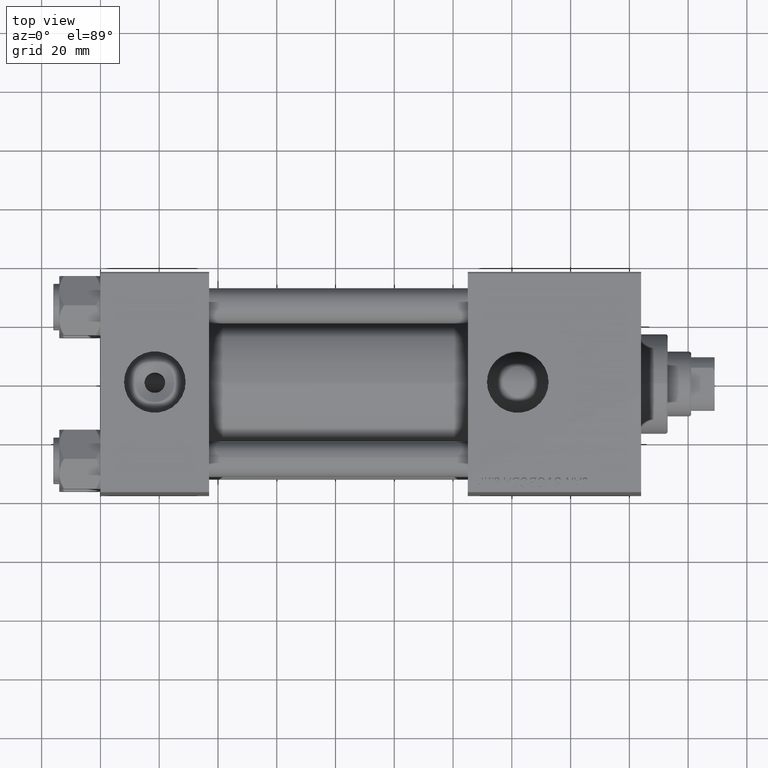
[diagram: clean part render]
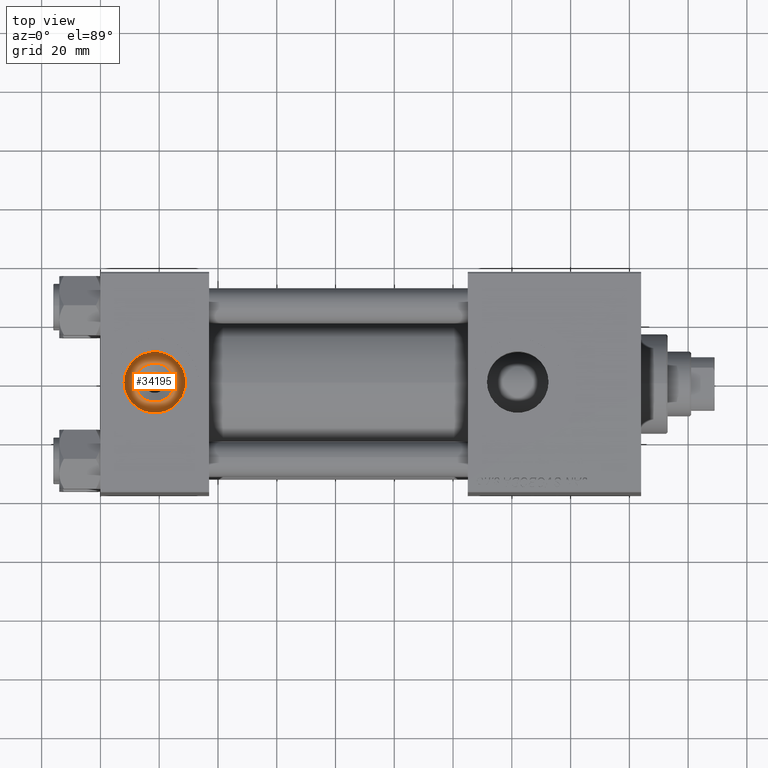
[diagram: same view with one face highlighted and labeled with its STEP entity id]
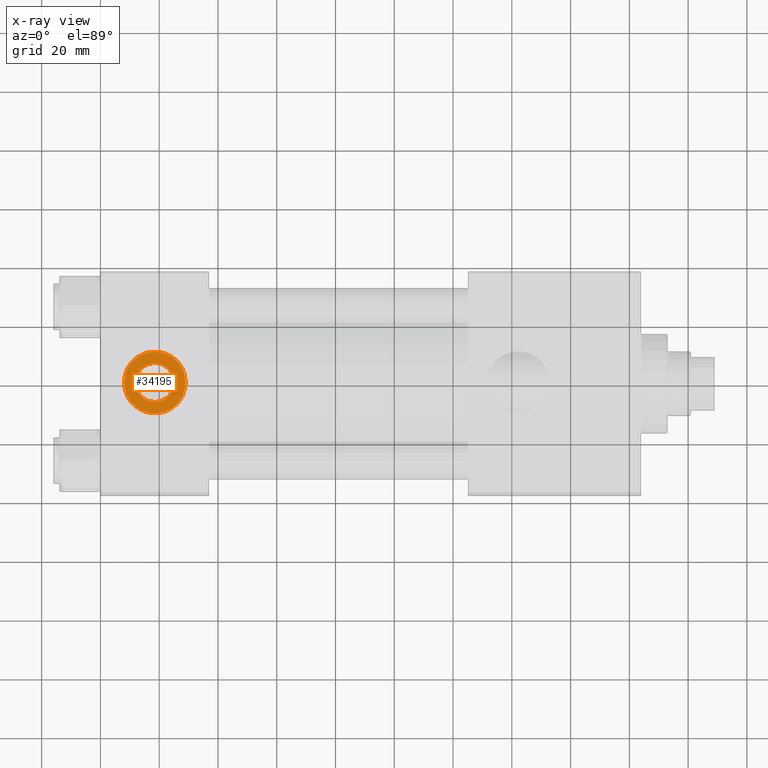
[diagram: x-ray of the same camera — body ghosted, the highlighted face saturated]
A machine part, top view. The second image highlights one B-rep face of the part: STEP entity #34195.
The next image is the same camera in x-ray: the body ghosted, the highlighted face saturated — about 0% of this face is hidden behind the body in this view.
In plain terms, the highlighted planar face has unit normal (0, 0, 1).
Its self-contained STEP definition (entity closure, byte-faithful):
#865 = CARTESIAN_POINT ( 'NONE',  ( 11.85999999999998522, -4.391004953296577596E-15, 26.69999999999999929 ) ) ;
#1204 = ORIENTED_EDGE ( 'NONE', *, *, #44968, .T. ) ;
#3933 = CARTESIAN_POINT ( 'NONE',  ( 18.50000000000000000, -5.204170427930421283E-15, 26.69999999999999929 ) ) ;
#6802 = EDGE_LOOP ( 'NONE', ( #1204, #45011 ) ) ;
#8130 = CARTESIAN_POINT ( 'NONE',  ( 18.50000000000000000, -5.204170427930421283E-15, 26.69999999999999929 ) ) ;
#8697 = DIRECTION ( 'NONE',  ( 1.000000000000000000, 0.000000000000000000, 0.000000000000000000 ) ) ;
#11031 = ORIENTED_EDGE ( 'NONE', *, *, #49799, .T. ) ;
#11077 = CARTESIAN_POINT ( 'NONE',  ( 18.50000000000000000, -5.204170427930421283E-15, 26.69999999999999929 ) ) ;
#11240 = CARTESIAN_POINT ( 'NONE',  ( 8.019999999999999574, -3.920740582423995006E-15, 26.69999999999999929 ) ) ;
#12826 = AXIS2_PLACEMENT_3D ( 'NONE', #11077, #24252, #8697 ) ;
#14575 = EDGE_CURVE ( 'NONE', #19813, #21743, #34798, .T. ) ;
#14577 = CARTESIAN_POINT ( 'NONE',  ( 25.14000000000001478, -5.204170427930421283E-15, 26.69999999999999929 ) ) ;
#16228 = VERTEX_POINT ( 'NONE', #11240 ) ;
#16240 = CIRCLE ( 'NONE', #44693, 10.48000000000000043 ) ;
#17042 = AXIS2_PLACEMENT_3D ( 'NONE', #8130, #23684, #49459 ) ;
#17617 = DIRECTION ( 'NONE',  ( 1.000000000000000000, 0.000000000000000000, 0.000000000000000000 ) ) ;
#18773 = EDGE_CURVE ( 'NONE', #16228, #42256, #16240, .T. ) ;
#19298 = ORIENTED_EDGE ( 'NONE', *, *, #14575, .T. ) ;
#19477 = DIRECTION ( 'NONE',  ( 1.000000000000000000, 0.000000000000000000, 0.000000000000000000 ) ) ;
#19742 = AXIS2_PLACEMENT_3D ( 'NONE', #30409, #26337, #41837 ) ;
#19813 = VERTEX_POINT ( 'NONE', #865 ) ;
#20479 = DIRECTION ( 'NONE',  ( 0.000000000000000000, 0.000000000000000000, 1.000000000000000000 ) ) ;
#21743 = VERTEX_POINT ( 'NONE', #14577 ) ;
#22912 = CIRCLE ( 'NONE', #48060, 6.640000000000013891 ) ;
#23684 = DIRECTION ( 'NONE',  ( 0.000000000000000000, 0.000000000000000000, 1.000000000000000000 ) ) ;
#24252 = DIRECTION ( 'NONE',  ( -0.000000000000000000, -0.000000000000000000, -1.000000000000000000 ) ) ;
#26337 = DIRECTION ( 'NONE',  ( 0.000000000000000000, 0.000000000000000000, 1.000000000000000000 ) ) ;
#28698 = CIRCLE ( 'NONE', #19742, 10.48000000000000043 ) ;
#30409 = CARTESIAN_POINT ( 'NONE',  ( 18.50000000000000000, -5.204170427930421283E-15, 26.69999999999999929 ) ) ;
#32868 = CARTESIAN_POINT ( 'NONE',  ( 28.98000000000000043, -5.204170427930421283E-15, 26.69999999999999929 ) ) ;
#33936 = PLANE ( 'NONE',  #17042 ) ;
#34195 = ADVANCED_FACE ( 'NONE', ( #43019, #49717 ), #33936, .T. ) ;
#34798 = CIRCLE ( 'NONE', #12826, 6.640000000000013891 ) ;
#36734 = DIRECTION ( 'NONE',  ( -0.000000000000000000, -0.000000000000000000, -1.000000000000000000 ) ) ;
#37240 = CARTESIAN_POINT ( 'NONE',  ( 18.50000000000000000, -5.204170427930421283E-15, 26.69999999999999929 ) ) ;
#41148 = EDGE_LOOP ( 'NONE', ( #11031, #19298 ) ) ;
#41837 = DIRECTION ( 'NONE',  ( 1.000000000000000000, 0.000000000000000000, 0.000000000000000000 ) ) ;
#42256 = VERTEX_POINT ( 'NONE', #32868 ) ;
#43019 = FACE_BOUND ( 'NONE', #41148, .T. ) ;
#44693 = AXIS2_PLACEMENT_3D ( 'NONE', #3933, #20479, #19477 ) ;
#44968 = EDGE_CURVE ( 'NONE', #42256, #16228, #28698, .T. ) ;
#45011 = ORIENTED_EDGE ( 'NONE', *, *, #18773, .T. ) ;
#48060 = AXIS2_PLACEMENT_3D ( 'NONE', #37240, #36734, #17617 ) ;
#49459 = DIRECTION ( 'NONE',  ( 1.000000000000000000, 0.000000000000000000, -0.000000000000000000 ) ) ;
#49717 = FACE_OUTER_BOUND ( 'NONE', #6802, .T. ) ;
#49799 = EDGE_CURVE ( 'NONE', #21743, #19813, #22912, .T. ) ;